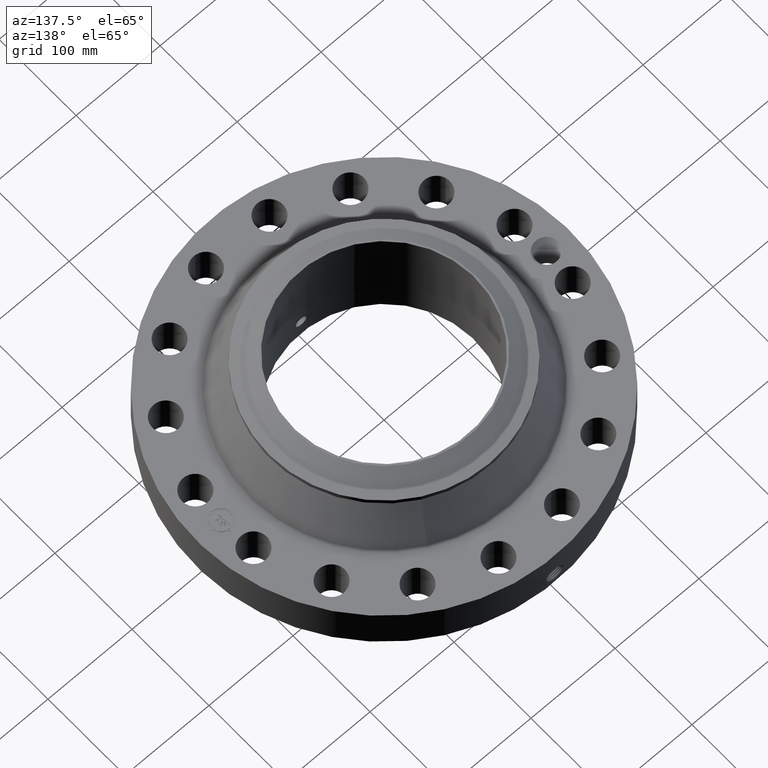
[diagram: clean part render]
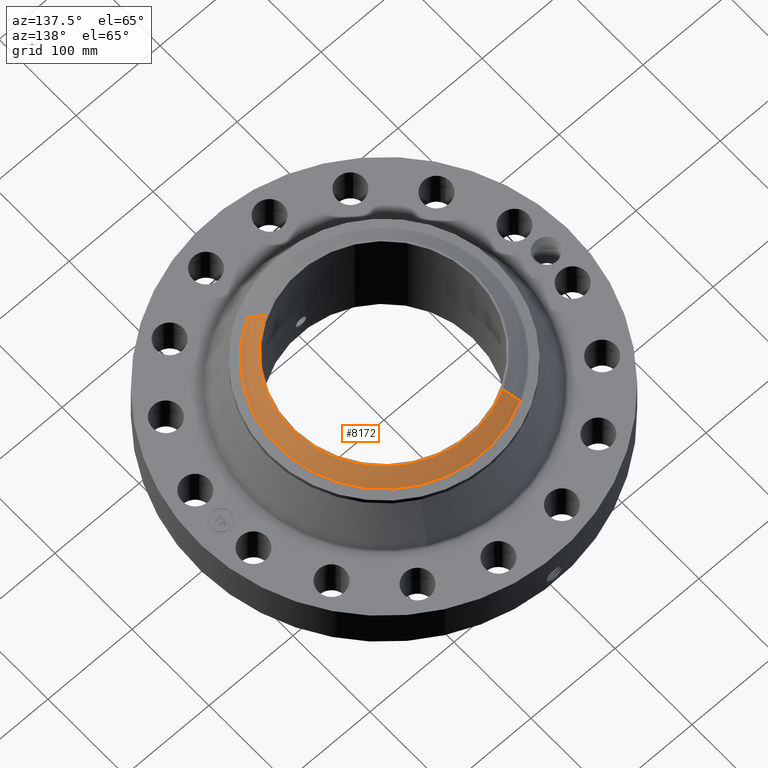
[diagram: same view with one face highlighted and labeled with its STEP entity id]
A machine part, auxiliary view. The second image highlights one B-rep face of the part: STEP entity #8172.
In plain terms, the highlighted conical surface has half-angle 52.5 deg.
Its self-contained STEP definition (entity closure, byte-faithful):
#4597=AXIS2_PLACEMENT_3D('Circle Axis2P3D',#4595,#4596,$) ;
#8133=AXIS2_PLACEMENT_3D('Cone Axis2P3D',#8130,#8131,#8132) ;
#8163=AXIS2_PLACEMENT_3D('Circle Axis2P3D',#8161,#8162,$) ;
#4595=CARTESIAN_POINT('Axis2P3D Location',(0.,0.,5.13000000002)) ;
#4599=CARTESIAN_POINT('Vertex',(2.07530858149,-3.79882687717,5.13000000002)) ;
#4601=CARTESIAN_POINT('Vertex',(-2.07530858149,3.79882687717,5.13000000002)) ;
#8130=CARTESIAN_POINT('Axis2P3D Location',(0.,0.,5.13000000002)) ;
#8135=CARTESIAN_POINT('Line Origine',(-2.23024988404,4.08244502908,4.88201437259)) ;
#8139=CARTESIAN_POINT('Vertex',(-2.38519118659,4.36606318098,4.63402874515)) ;
#8146=CARTESIAN_POINT('Vertex',(2.38519118659,-4.36606318098,4.63402874515)) ;
#8149=CARTESIAN_POINT('Line Origine',(2.23024988404,-4.08244502908,4.88201437259)) ;
#8161=CARTESIAN_POINT('Axis2P3D Location',(0.,0.,4.63402874515)) ;
#4596=DIRECTION('Axis2P3D Direction',(0.,0.,-0.0393700787402)) ;
#8131=DIRECTION('Axis2P3D Direction',(-0.,-0.,-0.0393700787402)) ;
#8132=DIRECTION('Axis2P3D XDirection',(-0.0188750212049,0.0345504945626,0.)) ;
#8136=DIRECTION('Vector Direction',(-0.014974561121,0.02741075027,-0.023966985394)) ;
#8150=DIRECTION('Vector Direction',(0.014974561121,-0.02741075027,-0.023966985394)) ;
#8162=DIRECTION('Axis2P3D Direction',(0.,0.,-0.0393700787402)) ;
#8137=VECTOR('Line Direction',#8136,0.0393700787402) ;
#8151=VECTOR('Line Direction',#8150,0.0393700787402) ;
#8167=ORIENTED_EDGE('',*,*,#4603,.F.) ;
#8168=ORIENTED_EDGE('',*,*,#8153,.T.) ;
#8169=ORIENTED_EDGE('',*,*,#8165,.T.) ;
#8170=ORIENTED_EDGE('',*,*,#8141,.F.) ;
#8172=ADVANCED_FACE('PartBody',(#8171),#8134,.T.) ;
#4598=CIRCLE('generated circle',#4597,4.3287401575) ;
#8164=CIRCLE('generated circle',#8163,4.97510248104) ;
#8134=CONICAL_SURFACE('Cone',#8133,4.3287401575,0.916297857297) ;
#4603=EDGE_CURVE('',#4600,#4602,#4598,.F.) ;
#8141=EDGE_CURVE('',#4602,#8140,#8138,.T.) ;
#8153=EDGE_CURVE('',#4600,#8147,#8152,.T.) ;
#8165=EDGE_CURVE('',#8147,#8140,#8164,.F.) ;
#8166=EDGE_LOOP('',(#8167,#8168,#8169,#8170)) ;
#8171=FACE_OUTER_BOUND('',#8166,.T.) ;
#8138=LINE('Line',#8135,#8137) ;
#8152=LINE('Line',#8149,#8151) ;
#4600=VERTEX_POINT('',#4599) ;
#4602=VERTEX_POINT('',#4601) ;
#8140=VERTEX_POINT('',#8139) ;
#8147=VERTEX_POINT('',#8146) ;